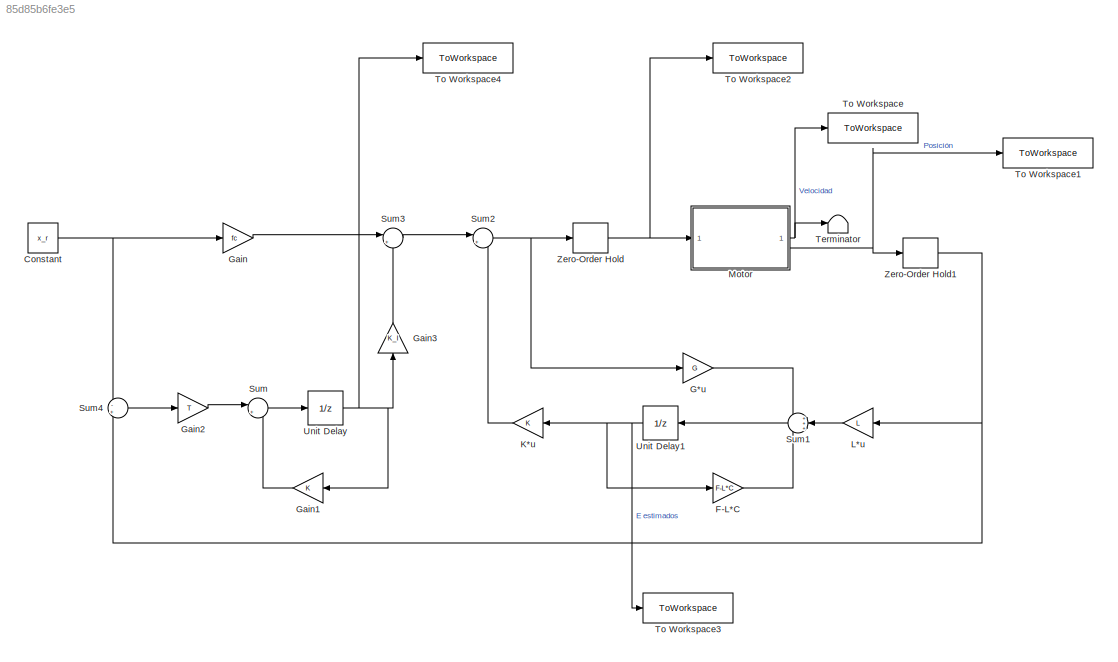
MODEL slx_85d85b6fe3e5
KIND model
CONFIG AbsTol = auto
CONFIG EnableMultiTasking = off
CONFIG FixedStep = auto
CONFIG MaxStep = 1e-5
CONFIG MinStep = auto
CONFIG RelTol = 1e-5
CONFIG SampleTimeConstraint = Unconstrained
CONFIG SolverName = ode45
CONFIG StartTime = 0.0
CONFIG StopTime = 3
BLOCK [Constant] Constant
  Value = x_r
BLOCK [Gain] F-L*C
  Gain = F-L*C
  Multiplication = Matrix(K*u)
BLOCK [Gain] G*u
  Gain = G
  Multiplication = Matrix(K*u)
BLOCK [Gain] Gain
  Gain = fc
BLOCK [Gain] Gain1
BLOCK [Gain] Gain2
  Gain = T
BLOCK [Gain] Gain3
  Gain = K_I
  NameLocation = right
BLOCK [Gain] K*u
  Gain = K
  Multiplication = Matrix(K*u)
  NameLocation = top
BLOCK [Gain] L*u
  Gain = L
  Multiplication = Matrix(K*u)
  NameLocation = top
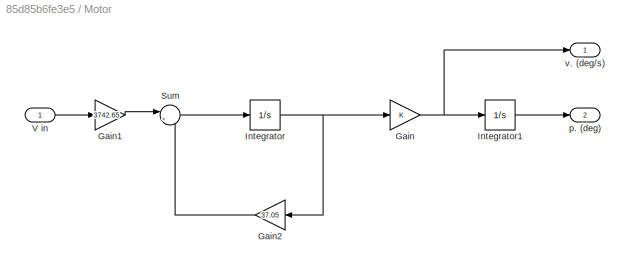
BLOCK [SubSystem] Motor
BLOCK [Gain] Motor/Gain
BLOCK [Gain] Motor/Gain1
  Gain = 3742.65
BLOCK [Gain] Motor/Gain2
  Gain = 37.05
  NameLocation = top
BLOCK [Integrator] Motor/Integrator
BLOCK [Integrator] Motor/Integrator1
BLOCK [Sum] Motor/Sum
  Inputs = |+-
BLOCK [Inport] Motor/V in
BLOCK [Outport] Motor/p. (deg)
  Port = 2
BLOCK [Outport] Motor/v. (deg//s)
BLOCK [Sum] Sum
  Inputs = |++
BLOCK [Sum] Sum1
  Inputs = +++
  NameLocation = top
BLOCK [Sum] Sum2
  Inputs = |+-
BLOCK [Sum] Sum3
  Inputs = |+-
BLOCK [Sum] Sum4
  Inputs = -+
BLOCK [Terminator] Terminator
BLOCK [ToWorkspace] To Workspace
  FixptAsFi = on
  MaxDataPoints = inf
  SampleTime = -1
  SaveFormat = Timeseries
  VariableName = Velocidad
BLOCK [ToWorkspace] To Workspace1
  FixptAsFi = on
  MaxDataPoints = inf
  SampleTime = -1
  SaveFormat = Timeseries
  VariableName = Posicion
BLOCK [ToWorkspace] To Workspace2
  FixptAsFi = on
  MaxDataPoints = inf
  SampleTime = -1
  SaveFormat = Timeseries
  VariableName = u
BLOCK [ToWorkspace] To Workspace3
  FixptAsFi = on
  MaxDataPoints = inf
  SampleTime = -1
  SaveFormat = Timeseries
  VariableName = estimados
BLOCK [ToWorkspace] To Workspace4
  FixptAsFi = on
  MaxDataPoints = inf
  SampleTime = -1
  SaveFormat = Timeseries
  VariableName = z
BLOCK [UnitDelay] Unit Delay
  HasFrameUpgradeWarning = on
  SampleTime = -1
BLOCK [UnitDelay] Unit Delay1
  HasFrameUpgradeWarning = on
  SampleTime = -1
BLOCK [ZeroOrderHold] Zero-Order Hold
  SampleTime = T
BLOCK [ZeroOrderHold] Zero-Order Hold1
  SampleTime = T
NET Constant:1 -> Gain:1, Sum4:1
LINE F-L*C:1 -> Sum1:3
LINE G*u:1 -> Sum1:1
LINE Gain1:1 -> Sum:2
LINE Gain2:1 -> Sum:1
LINE Gain3:1 -> Sum3:2
LINE Gain:1 -> Sum3:1
LINE K*u:1 -> Sum2:2
LINE L*u:1 -> Sum1:2
LINE Motor/Gain1:1 -> Motor/Sum:1
LINE Motor/Gain2:1 -> Motor/Sum:2
NET Motor/Gain:1 -> Motor/Integrator1:1, Motor/v. (deg//s):1
LINE Motor/Integrator1:1 -> Motor/p. (deg):1
NET Motor/Integrator:1 -> Motor/Gain2:1, Motor/Gain:1
LINE Motor/Sum:1 -> Motor/Integrator:1
LINE Motor/V in:1 -> Motor/Gain1:1
NET Motor:1 -> Terminator:1, To Workspace:1
NET Motor:2 -> To Workspace1:1, Zero-Order Hold1:1
LINE Sum1:1 -> Unit Delay1:1
NET Sum2:1 -> G*u:1, Zero-Order Hold:1
LINE Sum3:1 -> Sum2:1
LINE Sum4:1 -> Gain2:1
LINE Sum:1 -> Unit Delay:1
NET Unit Delay1:1 -> F-L*C:1, K*u:1, To Workspace3:1
NET Unit Delay:1 -> Gain1:1, Gain3:1, To Workspace4:1
NET Zero-Order Hold1:1 -> L*u:1, Sum4:2
NET Zero-Order Hold:1 -> Motor:1, To Workspace2:1
note: NET lines group one-source signal fan-out (src -> all destinations, sorted); 1:1 wires keep LINE
